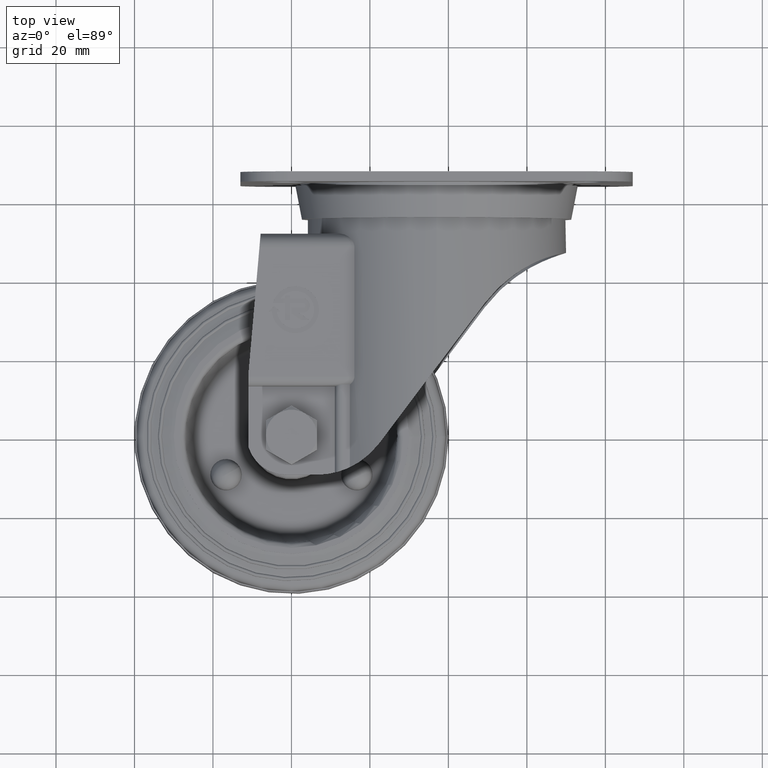
[diagram: clean part render]
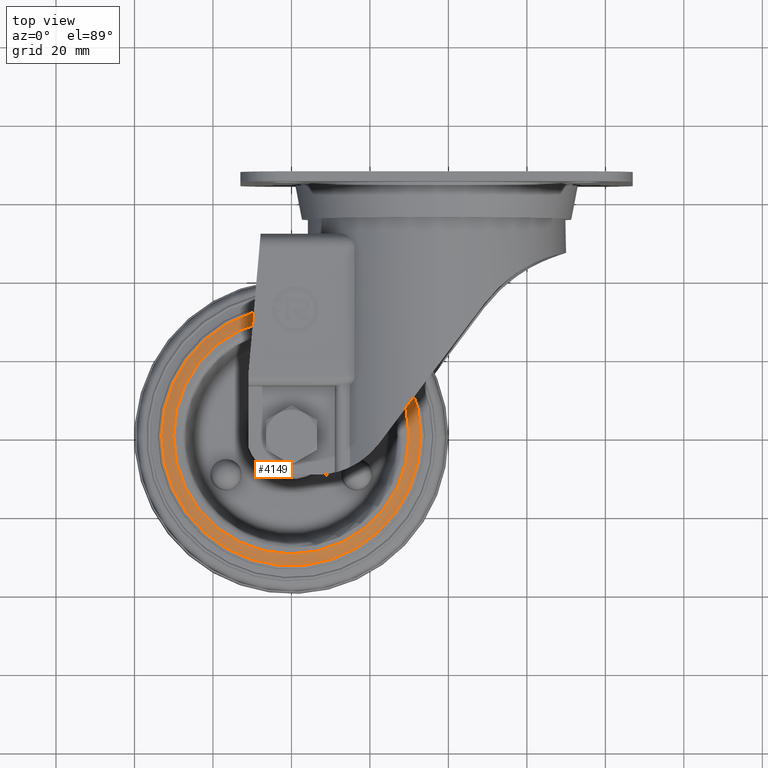
[diagram: same view with one face highlighted and labeled with its STEP entity id]
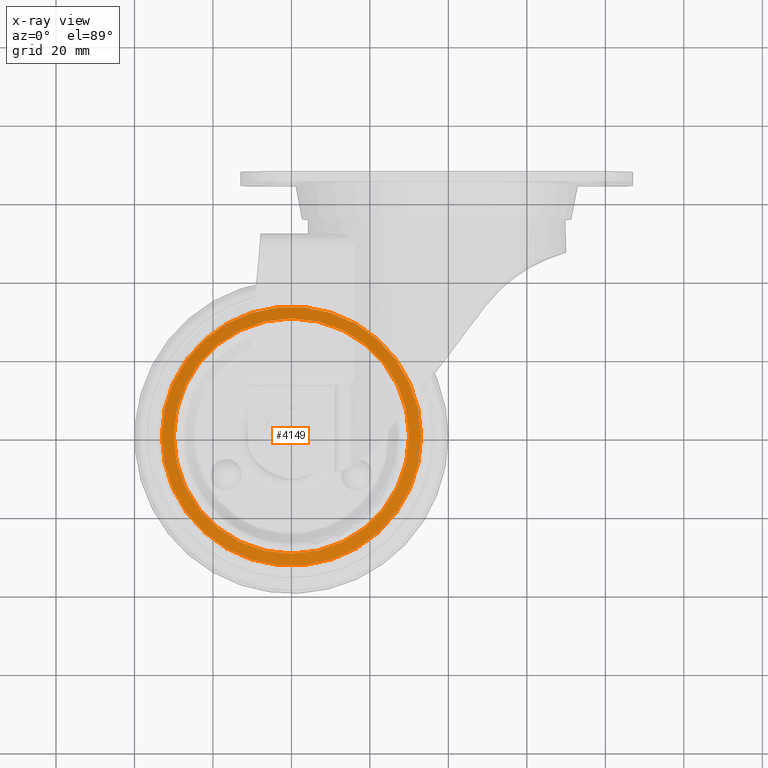
[diagram: x-ray of the same camera — body ghosted, the highlighted face saturated]
A machine part, top view. The second image highlights one B-rep face of the part: STEP entity #4149.
The next image is the same camera in x-ray: the body ghosted, the highlighted face saturated — about 0% of this face is hidden behind the body in this view.
In plain terms, the highlighted conical surface has half-angle 75 deg.
Its self-contained STEP definition (entity closure, byte-faithful):
#105=CONICAL_SURFACE('',#4485,30.,75.0000000000002);
#266=FACE_BOUND('',#882,.T.);
#388=CIRCLE('',#4484,33.0192596079883);
#389=CIRCLE('',#4486,30.);
#559=FACE_OUTER_BOUND('',#881,.T.);
#881=EDGE_LOOP('',(#2963));
#882=EDGE_LOOP('',(#2964));
#1927=VERTEX_POINT('',#6341);
#1928=VERTEX_POINT('',#6344);
#2340=EDGE_CURVE('',#1927,#1927,#388,.T.);
#2341=EDGE_CURVE('',#1928,#1928,#389,.T.);
#2963=ORIENTED_EDGE('',*,*,#2340,.T.);
#2964=ORIENTED_EDGE('',*,*,#2341,.F.);
#4149=ADVANCED_FACE('',(#559,#266),#105,.T.);
#4484=AXIS2_PLACEMENT_3D('',#6342,#5095,#5096);
#4485=AXIS2_PLACEMENT_3D('',#6343,#5097,#5098);
#4486=AXIS2_PLACEMENT_3D('',#6345,#5099,#5100);
#5095=DIRECTION('center_axis',(0.,0.,1.));
#5096=DIRECTION('ref_axis',(1.,0.,0.));
#5097=DIRECTION('center_axis',(0.,0.,-1.));
#5098=DIRECTION('ref_axis',(-1.,0.,0.));
#5099=DIRECTION('center_axis',(0.,0.,1.));
#5100=DIRECTION('ref_axis',(1.,0.,0.));
#6341=CARTESIAN_POINT('',(33.0192596079883,0.,11.6909918262996));
#6342=CARTESIAN_POINT('Origin',(0.,0.,11.6909918262996));
#6343=CARTESIAN_POINT('Origin',(0.,0.,12.5));
#6344=CARTESIAN_POINT('',(30.,0.,12.5));
#6345=CARTESIAN_POINT('Origin',(0.,0.,12.5));